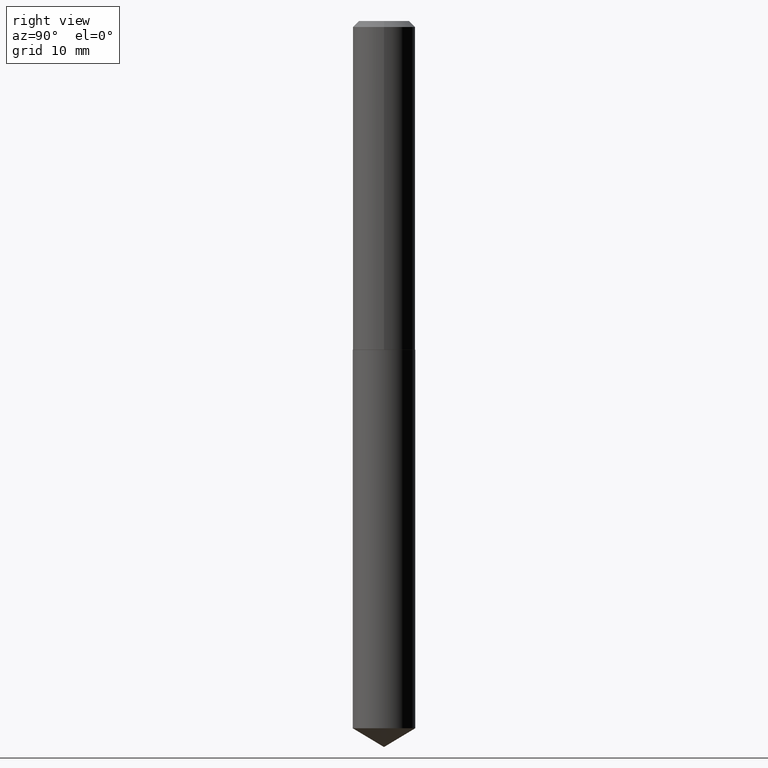
[diagram: clean part render]
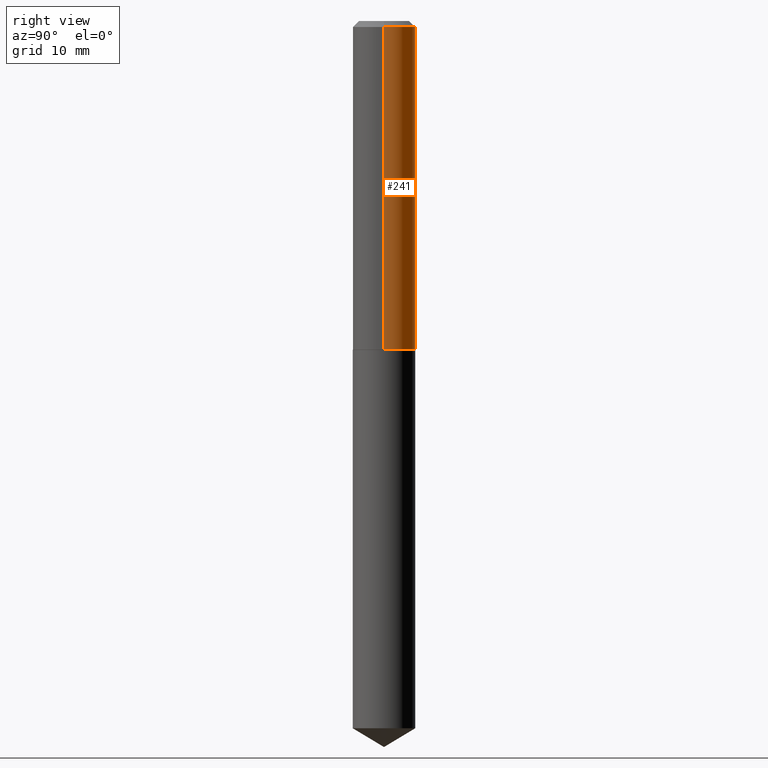
[diagram: same view with one face highlighted and labeled with its STEP entity id]
A machine part, right view. The second image highlights one B-rep face of the part: STEP entity #241.
In plain terms, the highlighted cylindrical surface (edge-blend (fillet) strip) has radius 4.1021 mm, axis along (-0, 0, 1).
Its self-contained STEP definition (entity closure, byte-faithful):
#10 = CARTESIAN_POINT ( 'NONE',  ( -0.1615000000000001157, 1.147526518252562622E-15, -7.944080170761677510E-30 ) ) ;
#11 = DIRECTION ( 'NONE',  ( -2.445468806185136877E-29, 3.491481338843145188E-15, 1.000000000000000000 ) ) ;
#18 = CIRCLE ( 'NONE', #23, 0.1615000000000000047 ) ;
#19 = DIRECTION ( 'NONE',  ( -2.445468806185136597E-29, 3.491481338843145583E-15, 1.000000000000000000 ) ) ;
#23 = AXIS2_PLACEMENT_3D ( 'NONE', #154, #37, #278 ) ;
#37 = DIRECTION ( 'NONE',  ( -2.445468806185136597E-29, 3.491481338843145583E-15, 1.000000000000000000 ) ) ;
#52 = CYLINDRICAL_SURFACE ( 'NONE', #313, 0.1615000000000001157 ) ;
#65 = VERTEX_POINT ( 'NONE', #185 ) ;
#103 = VERTEX_POINT ( 'NONE', #345 ) ;
#133 = LINE ( 'NONE', #350, #307 ) ;
#138 = CARTESIAN_POINT ( 'NONE',  ( 4.151183298499269552E-29, -5.926789572686240485E-15, -1.697500000000000231 ) ) ;
#154 = CARTESIAN_POINT ( 'NONE',  ( 7.642090019328598283E-31, -1.091087918388489651E-16, -0.03125000000000019429 ) ) ;
#164 = VECTOR ( 'NONE', #11, 39.37007874015748143 ) ;
#166 = EDGE_CURVE ( 'NONE', #103, #65, #18, .T. ) ;
#167 = DIRECTION ( 'NONE',  ( 1.000000000000000000, -6.982962677686266711E-15, 0.000000000000000000 ) ) ;
#168 = CARTESIAN_POINT ( 'NONE',  ( 0.1615000000000001990, -7.054538045132573600E-15, -1.697500000000000231 ) ) ;
#184 = EDGE_CURVE ( 'NONE', #196, #65, #372, .T. ) ;
#185 = CARTESIAN_POINT ( 'NONE',  ( -0.1615000000000000047, -1.870422664009981185E-15, -0.03125000000000019429 ) ) ;
#193 = ORIENTED_EDGE ( 'NONE', *, *, #184, .T. ) ;
#195 = CARTESIAN_POINT ( 'NONE',  ( 0.000000000000000000, 0.000000000000000000, 0.000000000000000000 ) ) ;
#196 = VERTEX_POINT ( 'NONE', #371 ) ;
#204 = DIRECTION ( 'NONE',  ( 1.000000000000000000, -6.982962677686265922E-15, 4.876176775795935232E-29 ) ) ;
#241 = ADVANCED_FACE ( 'NONE', ( #259 ), #52, .T. ) ;
#244 = ORIENTED_EDGE ( 'NONE', *, *, #379, .F. ) ;
#254 = ORIENTED_EDGE ( 'NONE', *, *, #166, .F. ) ;
#257 = AXIS2_PLACEMENT_3D ( 'NONE', #138, #266, #167 ) ;
#259 = FACE_OUTER_BOUND ( 'NONE', #291, .T. ) ;
#266 = DIRECTION ( 'NONE',  ( -2.445468806185136597E-29, 3.491481338843145583E-15, 1.000000000000000000 ) ) ;
#278 = DIRECTION ( 'NONE',  ( 1.000000000000000000, -6.982962677686266711E-15, 0.000000000000000000 ) ) ;
#291 = EDGE_LOOP ( 'NONE', ( #302, #193, #254, #244 ) ) ;
#302 = ORIENTED_EDGE ( 'NONE', *, *, #340, .T. ) ;
#307 = VECTOR ( 'NONE', #317, 39.37007874015748143 ) ;
#313 = AXIS2_PLACEMENT_3D ( 'NONE', #195, #19, #204 ) ;
#317 = DIRECTION ( 'NONE',  ( -2.445468806185136877E-29, 3.491481338843145188E-15, 1.000000000000000000 ) ) ;
#340 = EDGE_CURVE ( 'NONE', #349, #196, #374, .T. ) ;
#345 = CARTESIAN_POINT ( 'NONE',  ( 0.1615000000000000047, -1.236857264285181230E-15, -0.03125000000000019429 ) ) ;
#349 = VERTEX_POINT ( 'NONE', #168 ) ;
#350 = CARTESIAN_POINT ( 'NONE',  ( 0.1615000000000001157, -1.127748472446332721E-15, 7.875025492910441462E-30 ) ) ;
#371 = CARTESIAN_POINT ( 'NONE',  ( -0.1615000000000001990, -4.779263054433677272E-15, -1.697500000000000231 ) ) ;
#372 = LINE ( 'NONE', #10, #164 ) ;
#374 = CIRCLE ( 'NONE', #257, 0.1615000000000001990 ) ;
#379 = EDGE_CURVE ( 'NONE', #349, #103, #133, .T. ) ;